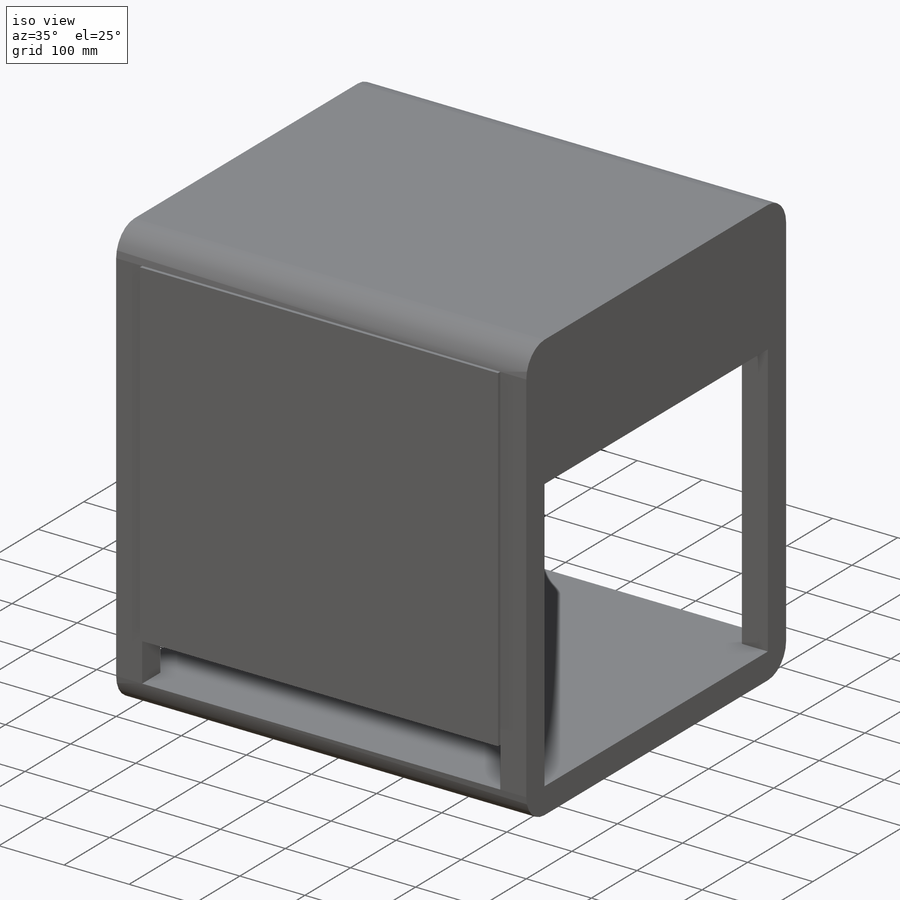
[diagram: iso view]
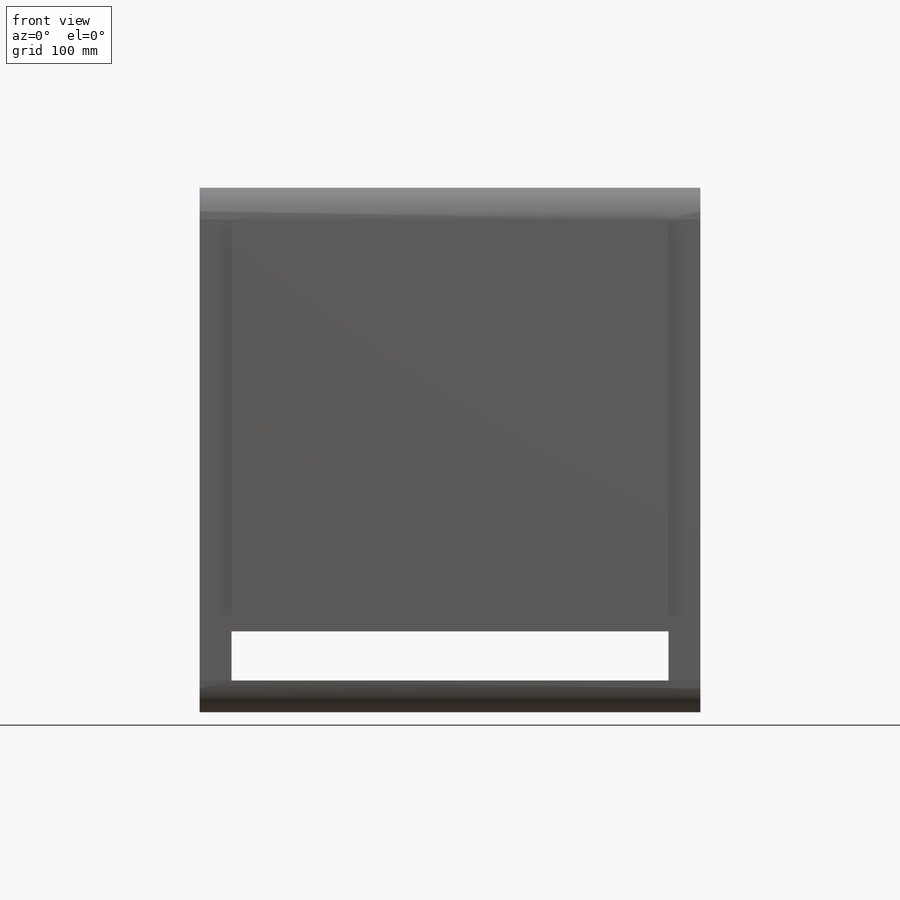
[diagram: front view]
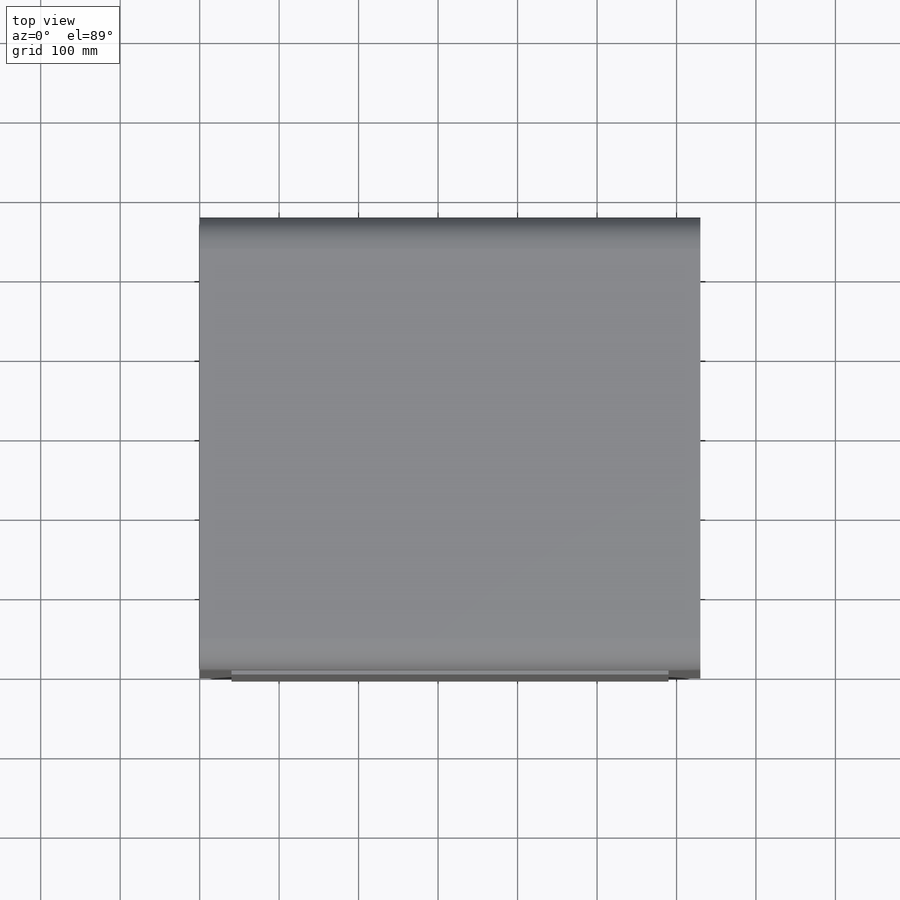
[diagram: top view]
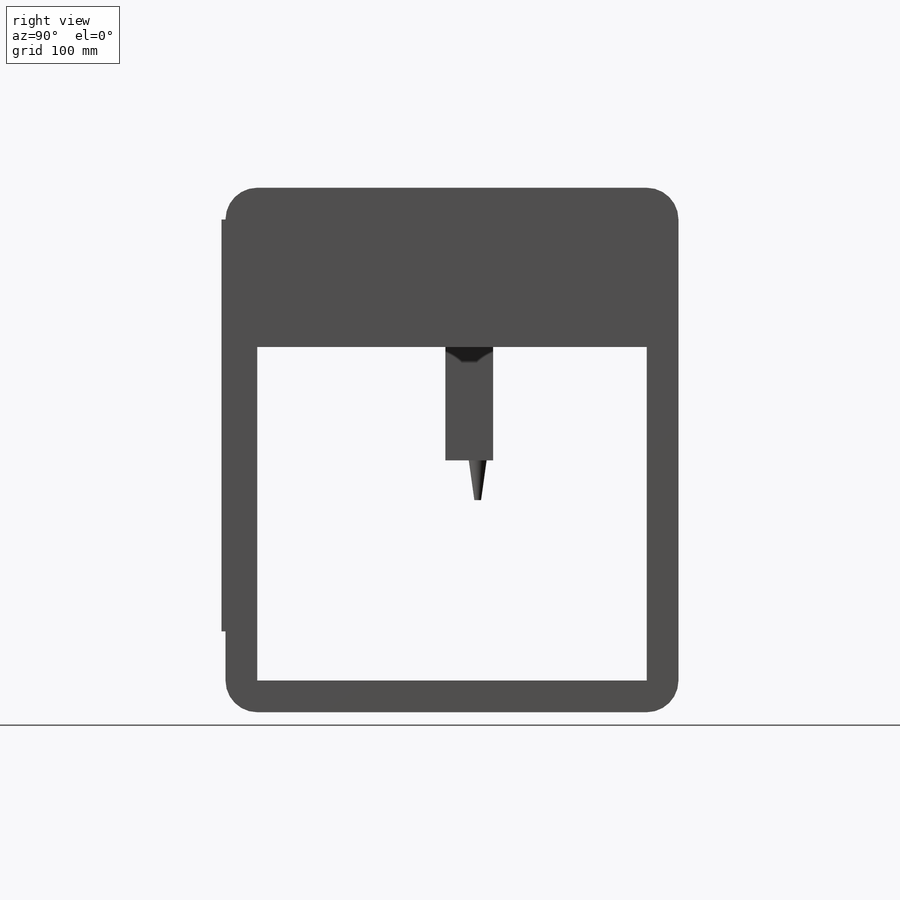
[diagram: right view]
SOLIDWORKS PART (.sldprt)
format: sldprt  version: not decoded by parser v0  size: 286,208 bytes
history: native  units: mm
features: sketch x7, plane x7, extrude x5, cut_extrude x2, material x1, fillet x1 (+11 scaffold rows collapsed)
feature tree (34):
  scaffold x11  (default folders/planes/origin — collapsed)
  material  "Material <not specified>"
  sketch  "Sketch1"  dims[D1=630.0mm]
  extrude  "Boss-Extrude1"  Depth=660mm
  plane  "Plane1"  Offset=0mm
  fillet  "Fillet1"  Radius=40mm
  plane  "Plane2"  Offset=0mm
  sketch  "Sketch3"  dims[D1=40.0mm]
  cut_extrude  "Cut-Extrude1"  Depth=5000mm
  plane  "Plane3"  Offset=0mm
  sketch  "Sketch4"  dims[D1=40.0mm]
  cut_extrude  "Cut-Extrude2"  Depth=5000mm
  plane  "Plane4"  Offset=0mm
  sketch  "Sketch5"
  extrude  "Boss-Extrude2"  Depth=100mm
  plane  "Plane5"  Offset=0mm
  sketch  "Sketch6"
  extrude  "Boss-Extrude3"  Depth=10mm
  plane  "Plane6"  Offset=0mm
  sketch  "Sketch7"
  extrude  "Boss-Extrude4"  Depth=50mm
  plane  "Plane7"  Offset=0mm
  sketch  "Sketch8"
  extrude  "Boss-Extrude5"  Depth=5mm
decode coverage: 11 of 15 modeling features carry decoded parameters
note: suppression state not decoded; provenance and decode notes live in map.json
